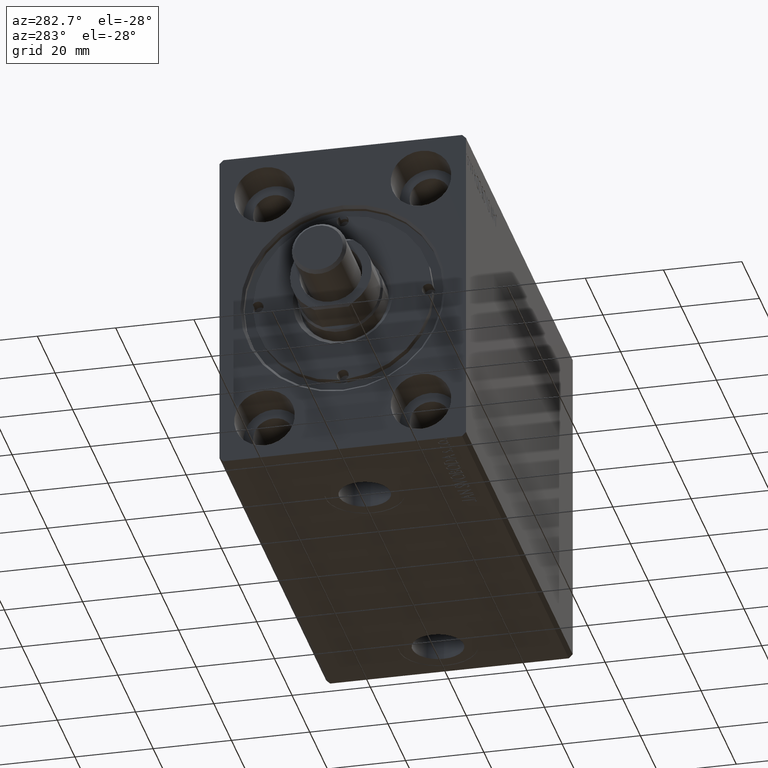
[diagram: clean part render]
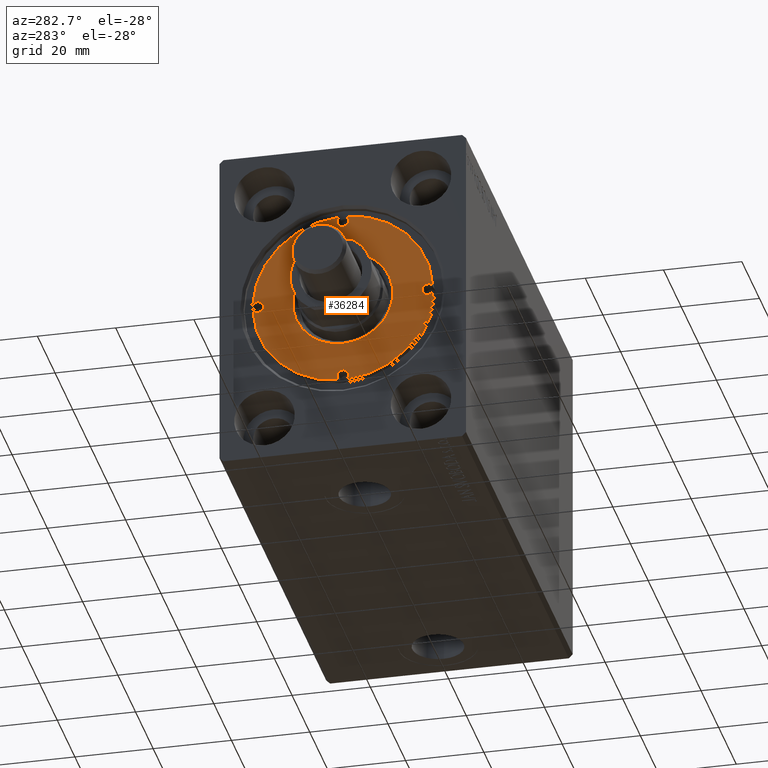
[diagram: same view with one face highlighted and labeled with its STEP entity id]
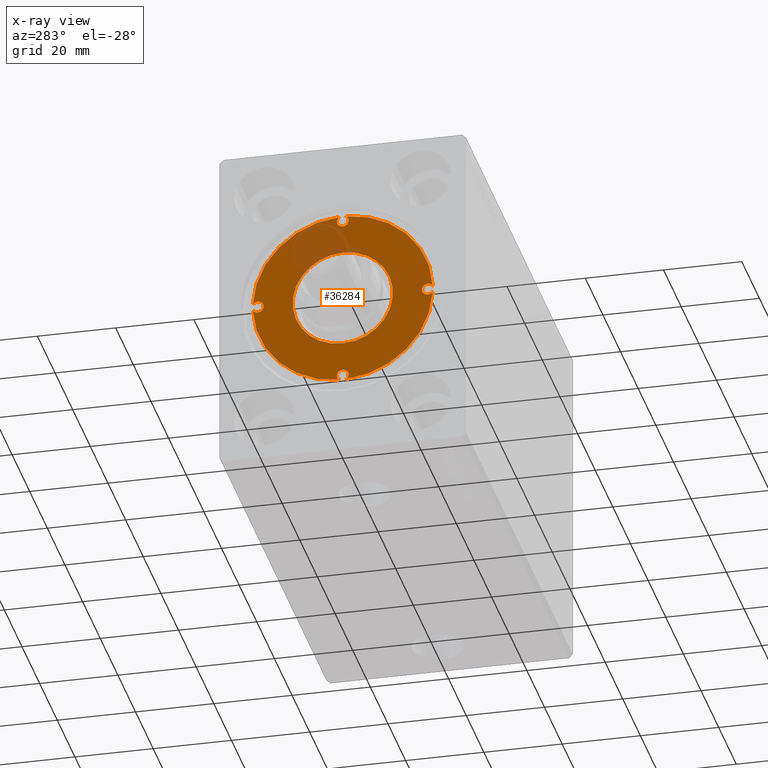
[diagram: x-ray of the same camera — body ghosted, the highlighted face saturated]
A machine part, auxiliary view. The second image highlights one B-rep face of the part: STEP entity #36284.
The next image is the same camera in x-ray: the body ghosted, the highlighted face saturated — about 12% of this face is hidden behind the body in this view.
In plain terms, the highlighted planar face has unit normal (-1, 0, 0).
Its self-contained STEP definition (entity closure, byte-faithful):
#62 = DIRECTION ( 'NONE',  ( 1.000000000000000000, 0.000000000000000000, 0.000000000000000000 ) ) ;
#731 = DIRECTION ( 'NONE',  ( 0.000000000000000000, 0.000000000000000000, 1.000000000000000000 ) ) ;
#823 = ORIENTED_EDGE ( 'NONE', *, *, #26713, .F. ) ;
#1391 = CIRCLE ( 'NONE', #36343, 23.00000000000000000 ) ;
#1640 = DIRECTION ( 'NONE',  ( -0.000000000000000000, -0.000000000000000000, 1.000000000000000000 ) ) ;
#1670 = CARTESIAN_POINT ( 'NONE',  ( -21.75000000000000000, 0.000000000000000000, 11.79999999999999893 ) ) ;
#2548 = CARTESIAN_POINT ( 'NONE',  ( 0.000000000000000000, 21.75000000000000000, 11.79999999999999893 ) ) ;
#2813 = ORIENTED_EDGE ( 'NONE', *, *, #24406, .F. ) ;
#3093 = DIRECTION ( 'NONE',  ( -0.000000000000000000, -0.000000000000000000, 1.000000000000000000 ) ) ;
#3554 = DIRECTION ( 'NONE',  ( 1.000000000000000000, 0.000000000000000000, 0.000000000000000000 ) ) ;
#3695 = EDGE_CURVE ( 'NONE', #23242, #12440, #3846, .T. ) ;
#3846 = CIRCLE ( 'NONE', #35100, 1.499999999999997780 ) ;
#4623 = AXIS2_PLACEMENT_3D ( 'NONE', #35114, #15520, #38779 ) ;
#4876 = AXIS2_PLACEMENT_3D ( 'NONE', #29924, #13066, #19218 ) ;
#5348 = EDGE_CURVE ( 'NONE', #7742, #32527, #17723, .T. ) ;
#5522 = DIRECTION ( 'NONE',  ( -0.000000000000000000, -0.000000000000000000, 1.000000000000000000 ) ) ;
#6039 = EDGE_CURVE ( 'NONE', #15977, #40906, #40319, .T. ) ;
#6299 = DIRECTION ( 'NONE',  ( 1.000000000000000000, 0.000000000000000000, 0.000000000000000000 ) ) ;
#6560 = DIRECTION ( 'NONE',  ( 1.000000000000000000, 0.000000000000000000, 0.000000000000000000 ) ) ;
#6660 = ORIENTED_EDGE ( 'NONE', *, *, #34510, .F. ) ;
#6725 = CARTESIAN_POINT ( 'NONE',  ( 0.000000000000000000, 21.75000000000000000, 11.79999999999999893 ) ) ;
#6791 = VERTEX_POINT ( 'NONE', #11529 ) ;
#7110 = CIRCLE ( 'NONE', #35484, 1.499999999999996891 ) ;
#7304 = CARTESIAN_POINT ( 'NONE',  ( -1.499999999999996891, -21.75000000000000000, 11.79999999999999893 ) ) ;
#7510 = AXIS2_PLACEMENT_3D ( 'NONE', #12946, #34129, #19547 ) ;
#7742 = VERTEX_POINT ( 'NONE', #34965 ) ;
#8552 = AXIS2_PLACEMENT_3D ( 'NONE', #1670, #35855, #43411 ) ;
#8744 = VERTEX_POINT ( 'NONE', #40736 ) ;
#8806 = EDGE_CURVE ( 'NONE', #21316, #32527, #32345, .T. ) ;
#9001 = DIRECTION ( 'NONE',  ( 1.000000000000000000, 0.000000000000000000, 0.000000000000000000 ) ) ;
#9317 = CIRCLE ( 'NONE', #31839, 12.79999999999997407 ) ;
#10388 = CIRCLE ( 'NONE', #32311, 12.79999999999997407 ) ;
#10392 = DIRECTION ( 'NONE',  ( 0.000000000000000000, 0.000000000000000000, 1.000000000000000000 ) ) ;
#11257 = CARTESIAN_POINT ( 'NONE',  ( 20.25000000000000000, 1.836970198721027222E-16, 11.79999999999999893 ) ) ;
#11409 = CIRCLE ( 'NONE', #4876, 23.00000000000000000 ) ;
#11529 = CARTESIAN_POINT ( 'NONE',  ( 12.79999999999997407, 0.000000000000000000, 11.79999999999999893 ) ) ;
#12119 = DIRECTION ( 'NONE',  ( -0.000000000000000000, -0.000000000000000000, 1.000000000000000000 ) ) ;
#12440 = VERTEX_POINT ( 'NONE', #35377 ) ;
#12595 = ORIENTED_EDGE ( 'NONE', *, *, #3695, .F. ) ;
#12744 = CIRCLE ( 'NONE', #38219, 1.499999999999996891 ) ;
#12881 = ORIENTED_EDGE ( 'NONE', *, *, #5348, .F. ) ;
#12912 = DIRECTION ( 'NONE',  ( 1.000000000000000000, 0.000000000000000000, 0.000000000000000000 ) ) ;
#12946 = CARTESIAN_POINT ( 'NONE',  ( 0.000000000000000000, 21.75000000000000000, 11.79999999999999893 ) ) ;
#13056 = VERTEX_POINT ( 'NONE', #30756 ) ;
#13066 = DIRECTION ( 'NONE',  ( 0.000000000000000000, 0.000000000000000000, 1.000000000000000000 ) ) ;
#13827 = VERTEX_POINT ( 'NONE', #15450 ) ;
#14507 = CIRCLE ( 'NONE', #37831, 23.00000000000000000 ) ;
#14930 = ORIENTED_EDGE ( 'NONE', *, *, #36358, .T. ) ;
#15450 = CARTESIAN_POINT ( 'NONE',  ( -1.499999999999996891, 21.75000000000000000, 11.79999999999999893 ) ) ;
#15520 = DIRECTION ( 'NONE',  ( -0.000000000000000000, -0.000000000000000000, 1.000000000000000000 ) ) ;
#15591 = ORIENTED_EDGE ( 'NONE', *, *, #39910, .T. ) ;
#15929 = CARTESIAN_POINT ( 'NONE',  ( 0.000000000000000000, 0.000000000000000000, 11.79999999999999893 ) ) ;
#15977 = VERTEX_POINT ( 'NONE', #43417 ) ;
#16336 = CARTESIAN_POINT ( 'NONE',  ( 21.75000000000000000, 0.000000000000000000, 11.79999999999999893 ) ) ;
#16906 = ORIENTED_EDGE ( 'NONE', *, *, #39958, .F. ) ;
#16987 = DIRECTION ( 'NONE',  ( 1.000000000000000000, 0.000000000000000000, 0.000000000000000000 ) ) ;
#17114 = ORIENTED_EDGE ( 'NONE', *, *, #39237, .F. ) ;
#17599 = CARTESIAN_POINT ( 'NONE',  ( -22.98419540229885172, -0.8525032017208856727, 11.79999999999999893 ) ) ;
#17723 = CIRCLE ( 'NONE', #7510, 1.499999999999996891 ) ;
#17971 = VERTEX_POINT ( 'NONE', #25071 ) ;
#18453 = EDGE_CURVE ( 'NONE', #8744, #6791, #10388, .T. ) ;
#19061 = VERTEX_POINT ( 'NONE', #33742 ) ;
#19218 = DIRECTION ( 'NONE',  ( 1.000000000000000000, 0.000000000000000000, 0.000000000000000000 ) ) ;
#19547 = DIRECTION ( 'NONE',  ( 1.000000000000000000, 0.000000000000000000, 0.000000000000000000 ) ) ;
#20090 = CIRCLE ( 'NONE', #38989, 1.499999999999996891 ) ;
#20207 = DIRECTION ( 'NONE',  ( -0.000000000000000000, -0.000000000000000000, 1.000000000000000000 ) ) ;
#21090 = DIRECTION ( 'NONE',  ( 1.000000000000000000, 0.000000000000000000, -0.000000000000000000 ) ) ;
#21316 = VERTEX_POINT ( 'NONE', #44267 ) ;
#21345 = CARTESIAN_POINT ( 'NONE',  ( 0.000000000000000000, -21.75000000000000000, 11.79999999999999893 ) ) ;
#21436 = CARTESIAN_POINT ( 'NONE',  ( -22.98419540229885527, 0.8525032017208826751, 11.79999999999999893 ) ) ;
#23242 = VERTEX_POINT ( 'NONE', #11257 ) ;
#23386 = DIRECTION ( 'NONE',  ( -0.000000000000000000, -0.000000000000000000, 1.000000000000000000 ) ) ;
#23725 = EDGE_CURVE ( 'NONE', #40745, #17971, #12744, .T. ) ;
#23839 = FACE_OUTER_BOUND ( 'NONE', #26861, .T. ) ;
#23855 = AXIS2_PLACEMENT_3D ( 'NONE', #25176, #35442, #21090 ) ;
#23930 = CARTESIAN_POINT ( 'NONE',  ( 0.8525032017208804547, 22.98419540229885527, 11.79999999999999893 ) ) ;
#24269 = CARTESIAN_POINT ( 'NONE',  ( 0.000000000000000000, -21.75000000000000000, 11.79999999999999893 ) ) ;
#24406 = EDGE_CURVE ( 'NONE', #13827, #7742, #25076, .T. ) ;
#24801 = ORIENTED_EDGE ( 'NONE', *, *, #6039, .F. ) ;
#25071 = CARTESIAN_POINT ( 'NONE',  ( -0.8525032017208786783, -22.98419540229885527, 11.79999999999999893 ) ) ;
#25076 = CIRCLE ( 'NONE', #41135, 1.499999999999996891 ) ;
#25176 = CARTESIAN_POINT ( 'NONE',  ( 0.000000000000000000, 0.000000000000000000, 11.79999999999999893 ) ) ;
#26148 = AXIS2_PLACEMENT_3D ( 'NONE', #26249, #1640, #41265 ) ;
#26249 = CARTESIAN_POINT ( 'NONE',  ( 0.000000000000000000, -21.75000000000000000, 11.79999999999999893 ) ) ;
#26713 = EDGE_CURVE ( 'NONE', #19061, #13827, #20090, .T. ) ;
#26861 = EDGE_LOOP ( 'NONE', ( #6660, #31837, #33551, #35229, #16906, #15591, #12595, #17114, #28738, #12881, #2813, #823, #39050, #24801 ) ) ;
#28149 = PLANE ( 'NONE',  #23855 ) ;
#28185 = DIRECTION ( 'NONE',  ( -0.000000000000000000, -0.000000000000000000, 1.000000000000000000 ) ) ;
#28738 = ORIENTED_EDGE ( 'NONE', *, *, #8806, .T. ) ;
#29145 = DIRECTION ( 'NONE',  ( 0.000000000000000000, 0.000000000000000000, 1.000000000000000000 ) ) ;
#29457 = CARTESIAN_POINT ( 'NONE',  ( 1.499999999999996891, -21.75000000000000000, 11.79999999999999893 ) ) ;
#29924 = CARTESIAN_POINT ( 'NONE',  ( 0.000000000000000000, 0.000000000000000000, 11.79999999999999893 ) ) ;
#30352 = DIRECTION ( 'NONE',  ( 1.000000000000000000, 0.000000000000000000, 0.000000000000000000 ) ) ;
#30650 = CARTESIAN_POINT ( 'NONE',  ( 0.000000000000000000, 0.000000000000000000, 11.79999999999999893 ) ) ;
#30756 = CARTESIAN_POINT ( 'NONE',  ( 0.8525032017208842294, -22.98419540229885172, 11.79999999999999893 ) ) ;
#31237 = AXIS2_PLACEMENT_3D ( 'NONE', #16336, #20207, #6299 ) ;
#31525 = DIRECTION ( 'NONE',  ( -0.000000000000000000, -0.000000000000000000, -1.000000000000000000 ) ) ;
#31837 = ORIENTED_EDGE ( 'NONE', *, *, #33757, .T. ) ;
#31839 = AXIS2_PLACEMENT_3D ( 'NONE', #43898, #40243, #9001 ) ;
#31962 = CARTESIAN_POINT ( 'NONE',  ( 0.000000000000000000, 0.000000000000000000, 11.79999999999999893 ) ) ;
#31966 = CIRCLE ( 'NONE', #31237, 1.499999999999997780 ) ;
#32311 = AXIS2_PLACEMENT_3D ( 'NONE', #30650, #31525, #62 ) ;
#32345 = CIRCLE ( 'NONE', #33824, 23.00000000000000000 ) ;
#32527 = VERTEX_POINT ( 'NONE', #23930 ) ;
#33551 = ORIENTED_EDGE ( 'NONE', *, *, #23725, .F. ) ;
#33553 = DIRECTION ( 'NONE',  ( 1.000000000000000000, 0.000000000000000000, 0.000000000000000000 ) ) ;
#33742 = CARTESIAN_POINT ( 'NONE',  ( -0.8525032017208826751, 22.98419540229885527, 11.79999999999999893 ) ) ;
#33757 = EDGE_CURVE ( 'NONE', #39746, #17971, #11409, .T. ) ;
#33824 = AXIS2_PLACEMENT_3D ( 'NONE', #15929, #29145, #36671 ) ;
#34129 = DIRECTION ( 'NONE',  ( -0.000000000000000000, -0.000000000000000000, 1.000000000000000000 ) ) ;
#34510 = EDGE_CURVE ( 'NONE', #39746, #15977, #38403, .T. ) ;
#34768 = CARTESIAN_POINT ( 'NONE',  ( 0.000000000000000000, 0.000000000000000000, 11.79999999999999893 ) ) ;
#34787 = ORIENTED_EDGE ( 'NONE', *, *, #18453, .T. ) ;
#34965 = CARTESIAN_POINT ( 'NONE',  ( 1.499999999999996891, 21.75000000000000000, 11.79999999999999893 ) ) ;
#35100 = AXIS2_PLACEMENT_3D ( 'NONE', #36751, #5522, #33553 ) ;
#35114 = CARTESIAN_POINT ( 'NONE',  ( -21.75000000000000000, 0.000000000000000000, 11.79999999999999893 ) ) ;
#35229 = ORIENTED_EDGE ( 'NONE', *, *, #35448, .F. ) ;
#35377 = CARTESIAN_POINT ( 'NONE',  ( 22.98419540229885527, -0.8525032017208801216, 11.79999999999999893 ) ) ;
#35442 = DIRECTION ( 'NONE',  ( 0.000000000000000000, 0.000000000000000000, 1.000000000000000000 ) ) ;
#35448 = EDGE_CURVE ( 'NONE', #40011, #40745, #7110, .T. ) ;
#35484 = AXIS2_PLACEMENT_3D ( 'NONE', #24269, #3093, #16987 ) ;
#35855 = DIRECTION ( 'NONE',  ( -0.000000000000000000, -0.000000000000000000, 1.000000000000000000 ) ) ;
#36284 = ADVANCED_FACE ( 'NONE', ( #23839, #37761 ), #28149, .T. ) ;
#36343 = AXIS2_PLACEMENT_3D ( 'NONE', #34768, #10392, #3554 ) ;
#36358 = EDGE_CURVE ( 'NONE', #6791, #8744, #9317, .T. ) ;
#36671 = DIRECTION ( 'NONE',  ( 1.000000000000000000, 0.000000000000000000, 0.000000000000000000 ) ) ;
#36751 = CARTESIAN_POINT ( 'NONE',  ( 21.75000000000000000, 0.000000000000000000, 11.79999999999999893 ) ) ;
#37761 = FACE_BOUND ( 'NONE', #38757, .T. ) ;
#37831 = AXIS2_PLACEMENT_3D ( 'NONE', #31962, #731, #42476 ) ;
#38219 = AXIS2_PLACEMENT_3D ( 'NONE', #21345, #28185, #6560 ) ;
#38403 = CIRCLE ( 'NONE', #8552, 1.499999999999997780 ) ;
#38757 = EDGE_LOOP ( 'NONE', ( #14930, #34787 ) ) ;
#38779 = DIRECTION ( 'NONE',  ( 1.000000000000000000, 0.000000000000000000, 0.000000000000000000 ) ) ;
#38989 = AXIS2_PLACEMENT_3D ( 'NONE', #6725, #23386, #12912 ) ;
#39050 = ORIENTED_EDGE ( 'NONE', *, *, #39312, .T. ) ;
#39237 = EDGE_CURVE ( 'NONE', #21316, #23242, #31966, .T. ) ;
#39312 = EDGE_CURVE ( 'NONE', #19061, #40906, #1391, .T. ) ;
#39746 = VERTEX_POINT ( 'NONE', #17599 ) ;
#39910 = EDGE_CURVE ( 'NONE', #13056, #12440, #14507, .T. ) ;
#39958 = EDGE_CURVE ( 'NONE', #13056, #40011, #43667, .T. ) ;
#40011 = VERTEX_POINT ( 'NONE', #29457 ) ;
#40243 = DIRECTION ( 'NONE',  ( -0.000000000000000000, -0.000000000000000000, -1.000000000000000000 ) ) ;
#40319 = CIRCLE ( 'NONE', #4623, 1.499999999999997780 ) ;
#40736 = CARTESIAN_POINT ( 'NONE',  ( -12.79999999999997407, 1.567547902908609029E-15, 11.79999999999999893 ) ) ;
#40745 = VERTEX_POINT ( 'NONE', #7304 ) ;
#40906 = VERTEX_POINT ( 'NONE', #21436 ) ;
#41135 = AXIS2_PLACEMENT_3D ( 'NONE', #2548, #12119, #30352 ) ;
#41265 = DIRECTION ( 'NONE',  ( 1.000000000000000000, 0.000000000000000000, 0.000000000000000000 ) ) ;
#42476 = DIRECTION ( 'NONE',  ( 1.000000000000000000, 0.000000000000000000, 0.000000000000000000 ) ) ;
#43411 = DIRECTION ( 'NONE',  ( 1.000000000000000000, 0.000000000000000000, 0.000000000000000000 ) ) ;
#43417 = CARTESIAN_POINT ( 'NONE',  ( -20.25000000000000000, 0.000000000000000000, 11.79999999999999893 ) ) ;
#43667 = CIRCLE ( 'NONE', #26148, 1.499999999999996891 ) ;
#43898 = CARTESIAN_POINT ( 'NONE',  ( 0.000000000000000000, 0.000000000000000000, 11.79999999999999893 ) ) ;
#44267 = CARTESIAN_POINT ( 'NONE',  ( 22.98419540229885527, 0.8525032017208840074, 11.79999999999999893 ) ) ;